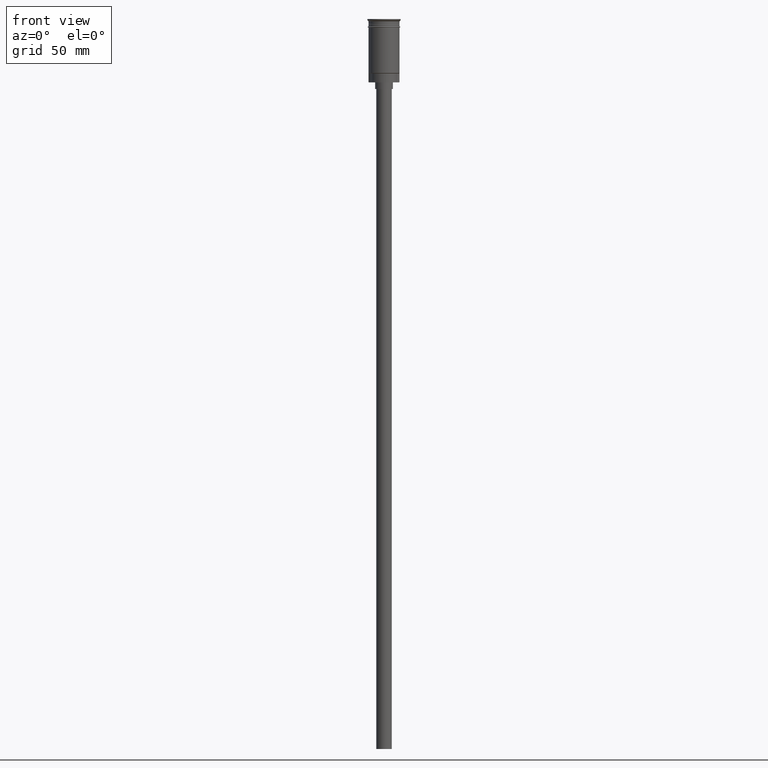
[diagram: clean part render]
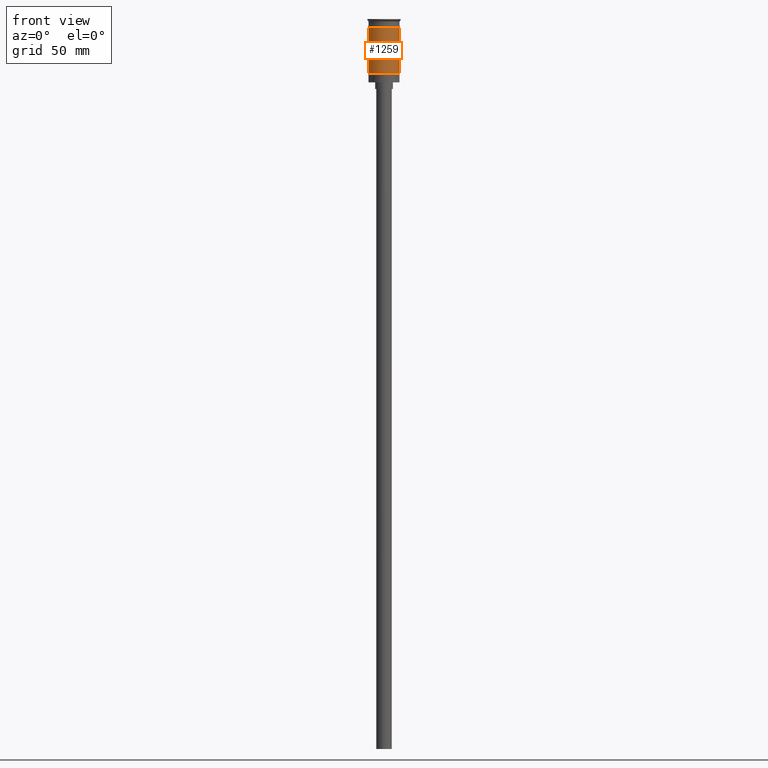
[diagram: same view with one face highlighted and labeled with its STEP entity id]
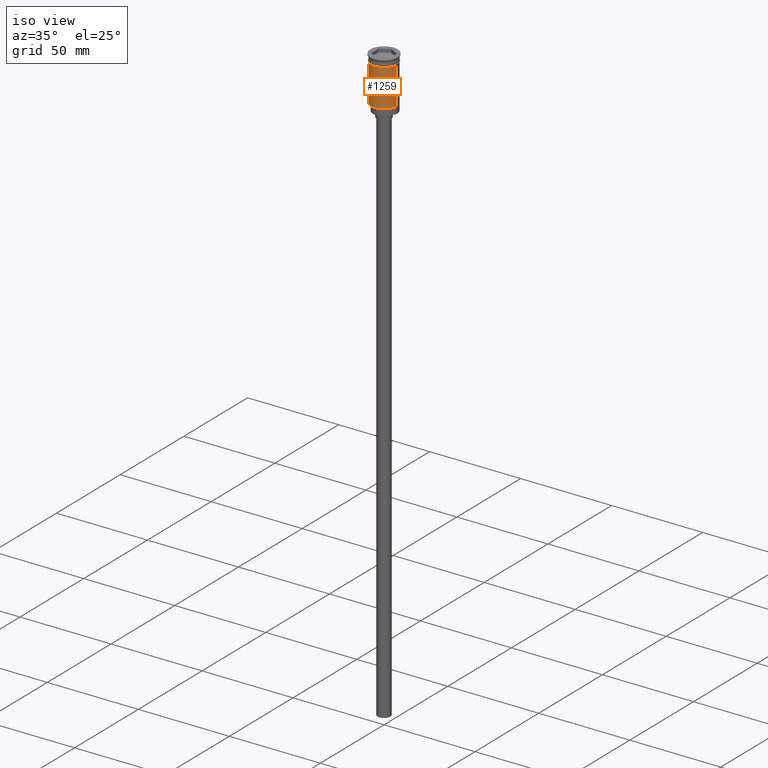
[diagram: same view with one face highlighted and labeled with its STEP entity id]
A machine part, front view. The second image highlights one B-rep face of the part: STEP entity #1259.
A second angle (iso view) of the same face is appended — the face is thin or edge-on in the first view.
In plain terms, the highlighted cylindrical surface (edge-blend (fillet) strip) has radius 7 mm, axis along (-0, -0, 1).
Its self-contained STEP definition (entity closure, byte-faithful):
#43 = CARTESIAN_POINT ( 'NONE',  ( 0.000000000000000000, 0.000000000000000000, -3.799999999999998490 ) ) ;
#53 = DIRECTION ( 'NONE',  ( -0.000000000000000000, -0.000000000000000000, 1.000000000000000000 ) ) ;
#85 = VERTEX_POINT ( 'NONE', #461 ) ;
#117 = VECTOR ( 'NONE', #1547, 1000.000000000000000 ) ;
#163 = VERTEX_POINT ( 'NONE', #965 ) ;
#176 = CARTESIAN_POINT ( 'NONE',  ( 0.000000000000000000, 0.000000000000000000, -24.30000000000006466 ) ) ;
#226 = CIRCLE ( 'NONE', #985, 6.999999999999996447 ) ;
#234 = LINE ( 'NONE', #828, #855 ) ;
#293 = DIRECTION ( 'NONE',  ( -1.000000000000000000, 0.000000000000000000, 0.000000000000000000 ) ) ;
#309 = CARTESIAN_POINT ( 'NONE',  ( 0.000000000000000000, 0.000000000000000000, 0.000000000000000000 ) ) ;
#381 = VERTEX_POINT ( 'NONE', #1254 ) ;
#384 = DIRECTION ( 'NONE',  ( 1.000000000000000000, 0.000000000000000000, 0.000000000000000000 ) ) ;
#386 = ORIENTED_EDGE ( 'NONE', *, *, #743, .F. ) ;
#461 = CARTESIAN_POINT ( 'NONE',  ( 6.999999999999999112, 0.000000000000000000, -3.799999999999998490 ) ) ;
#497 = CIRCLE ( 'NONE', #697, 6.999999999999999112 ) ;
#580 = ORIENTED_EDGE ( 'NONE', *, *, #1377, .T. ) ;
#658 = DIRECTION ( 'NONE',  ( -0.000000000000000000, -0.000000000000000000, 1.000000000000000000 ) ) ;
#697 = AXIS2_PLACEMENT_3D ( 'NONE', #43, #1245, #384 ) ;
#743 = EDGE_CURVE ( 'NONE', #163, #85, #497, .T. ) ;
#771 = CYLINDRICAL_SURFACE ( 'NONE', #1167, 6.999999999999996447 ) ;
#807 = EDGE_CURVE ( 'NONE', #1351, #381, #226, .T. ) ;
#828 = CARTESIAN_POINT ( 'NONE',  ( -6.999999999999996447, 8.572527594031468259E-16, 0.000000000000000000 ) ) ;
#855 = VECTOR ( 'NONE', #1450, 1000.000000000000000 ) ;
#916 = ORIENTED_EDGE ( 'NONE', *, *, #1446, .F. ) ;
#934 = CARTESIAN_POINT ( 'NONE',  ( -6.999999999999993783, 0.000000000000000000, -24.30000000000006466 ) ) ;
#951 = EDGE_LOOP ( 'NONE', ( #916, #1504, #580, #386 ) ) ;
#965 = CARTESIAN_POINT ( 'NONE',  ( -7.000000000000000000, 8.572527594031472204E-16, -3.799999999999998490 ) ) ;
#985 = AXIS2_PLACEMENT_3D ( 'NONE', #176, #658, #293 ) ;
#1019 = FACE_OUTER_BOUND ( 'NONE', #951, .T. ) ;
#1043 = LINE ( 'NONE', #1268, #117 ) ;
#1167 = AXIS2_PLACEMENT_3D ( 'NONE', #309, #53, #1553 ) ;
#1245 = DIRECTION ( 'NONE',  ( -0.000000000000000000, -0.000000000000000000, 1.000000000000000000 ) ) ;
#1254 = CARTESIAN_POINT ( 'NONE',  ( 6.999999999999996447, 8.572527594031468259E-16, -24.30000000000006466 ) ) ;
#1259 = ADVANCED_FACE ( 'NONE', ( #1019 ), #771, .T. ) ;
#1268 = CARTESIAN_POINT ( 'NONE',  ( 6.999999999999996447, 0.000000000000000000, 0.000000000000000000 ) ) ;
#1351 = VERTEX_POINT ( 'NONE', #934 ) ;
#1377 = EDGE_CURVE ( 'NONE', #381, #85, #1043, .T. ) ;
#1446 = EDGE_CURVE ( 'NONE', #1351, #163, #234, .T. ) ;
#1450 = DIRECTION ( 'NONE',  ( -0.000000000000000000, -0.000000000000000000, 1.000000000000000000 ) ) ;
#1504 = ORIENTED_EDGE ( 'NONE', *, *, #807, .T. ) ;
#1547 = DIRECTION ( 'NONE',  ( -0.000000000000000000, -0.000000000000000000, 1.000000000000000000 ) ) ;
#1553 = DIRECTION ( 'NONE',  ( 1.000000000000000000, 0.000000000000000000, 0.000000000000000000 ) ) ;